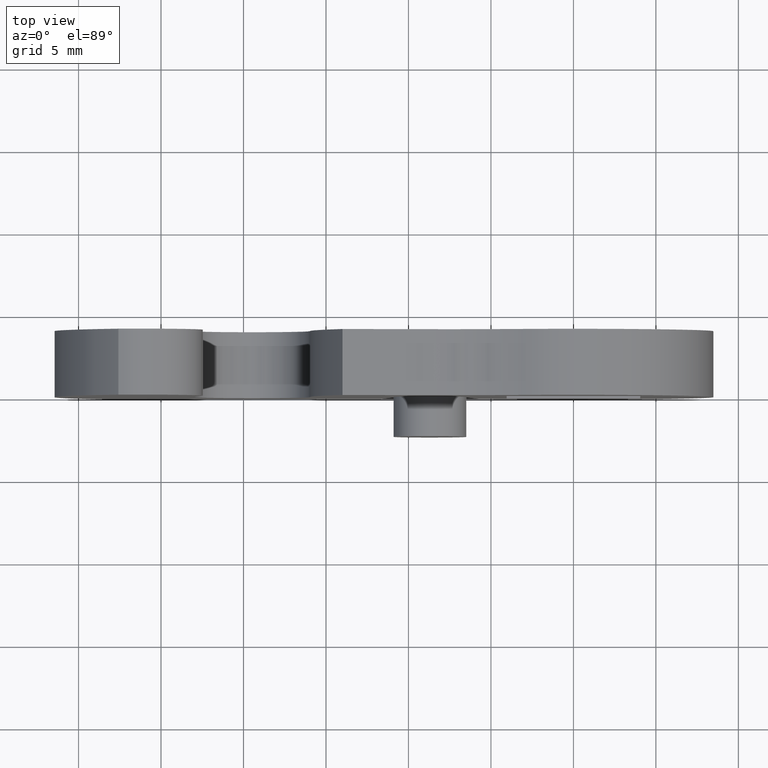
[diagram: clean part render]
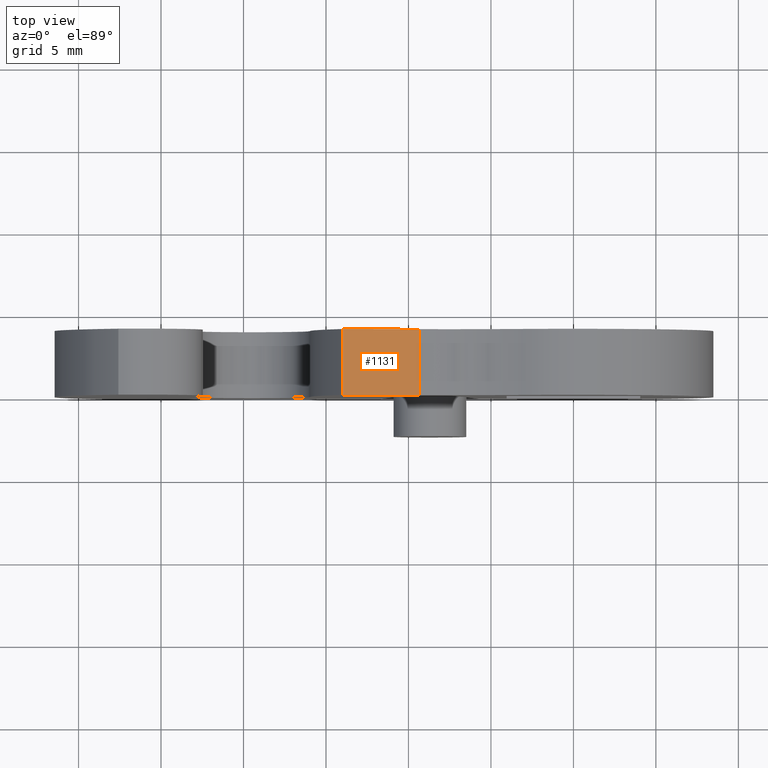
[diagram: same view with one face highlighted and labeled with its STEP entity id]
A machine part, top view. The second image highlights one B-rep face of the part: STEP entity #1131.
In plain terms, the highlighted face is a freeform B-spline surface patch.
Its self-contained STEP definition (entity closure, byte-faithful):
#734=CARTESIAN_POINT('',(-13.998497258809200,4.000000189989585,7.748683682652581));
#735=VERTEX_POINT('',#734);
#749=CARTESIAN_POINT('',(-9.320007165965649,4.000000189989585,7.110208311423781));
#750=VERTEX_POINT('',#749);
#751=CARTESIAN_POINT('',(-9.320007165965649,4.000000189989585,7.110208311423781));
#752=CARTESIAN_POINT('',(-13.998497258809200,4.000000189989585,7.748683682652581));
#753=QUASI_UNIFORM_CURVE('',1,(#751,#752),.UNSPECIFIED.,.F.,.U.);
#754=EDGE_CURVE('',#750,#735,#753,.T.);
#1085=CARTESIAN_POINT('',(-13.998497258809200,0.0,7.748683682652581));
#1086=VERTEX_POINT('',#1085);
#1100=CARTESIAN_POINT('',(-13.998497258809200,4.000000189989585,7.748683682652581));
#1101=CARTESIAN_POINT('',(-13.998497258809200,0.0,7.748683682652581));
#1102=QUASI_UNIFORM_CURVE('',1,(#1100,#1101),.UNSPECIFIED.,.F.,.U.);
#1103=EDGE_CURVE('',#735,#1086,#1102,.T.);
#1110=CARTESIAN_POINT('',(-14.232187549654160,-0.199799987446393,7.780575487965595));
#1111=CARTESIAN_POINT('',(-9.086316833291761,-0.199799987446393,7.078316500402154));
#1112=CARTESIAN_POINT('',(-14.232187549654160,4.199799998622035,7.780575487965595));
#1113=CARTESIAN_POINT('',(-9.086316833291761,4.199799998622035,7.078316500402154));
#1114=B_SPLINE_SURFACE_WITH_KNOTS('',1,1,((#1110,#1112),(#1111,#1113)),.UNSPECIFIED.,.F.,.F.,.U.,(2,2),(2,2),(0.0,5.193568437512849),(0.0,4.399599986068428),.UNSPECIFIED.);
#1115=CARTESIAN_POINT('',(-9.320007165965649,0.0,7.110208311423781));
#1116=VERTEX_POINT('',#1115);
#1117=CARTESIAN_POINT('',(-9.320007165965649,0.0,7.110208311423781));
#1118=CARTESIAN_POINT('',(-13.998497258809200,0.0,7.748683682652581));
#1119=QUASI_UNIFORM_CURVE('',1,(#1117,#1118),.UNSPECIFIED.,.F.,.U.);
#1120=EDGE_CURVE('',#1116,#1086,#1119,.T.);
#1121=ORIENTED_EDGE('',*,*,#1120,.F.);
#1122=CARTESIAN_POINT('',(-9.320007165965649,4.000000189989585,7.110208311423781));
#1123=CARTESIAN_POINT('',(-9.320007165965649,0.0,7.110208311423781));
#1124=QUASI_UNIFORM_CURVE('',1,(#1122,#1123),.UNSPECIFIED.,.F.,.U.);
#1125=EDGE_CURVE('',#750,#1116,#1124,.T.);
#1126=ORIENTED_EDGE('',*,*,#1125,.F.);
#1127=ORIENTED_EDGE('',*,*,#754,.T.);
#1128=ORIENTED_EDGE('',*,*,#1103,.T.);
#1129=EDGE_LOOP('',(#1121,#1126,#1127,#1128));
#1130=FACE_OUTER_BOUND('',#1129,.T.);
#1131=ADVANCED_FACE('',(#1130),#1114,.T.);